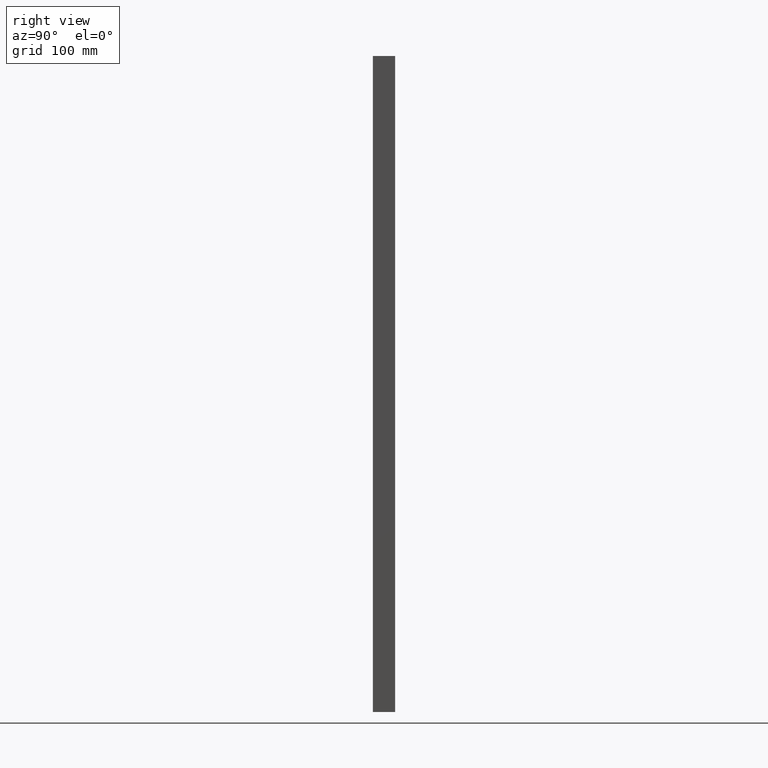
[diagram: clean part render]
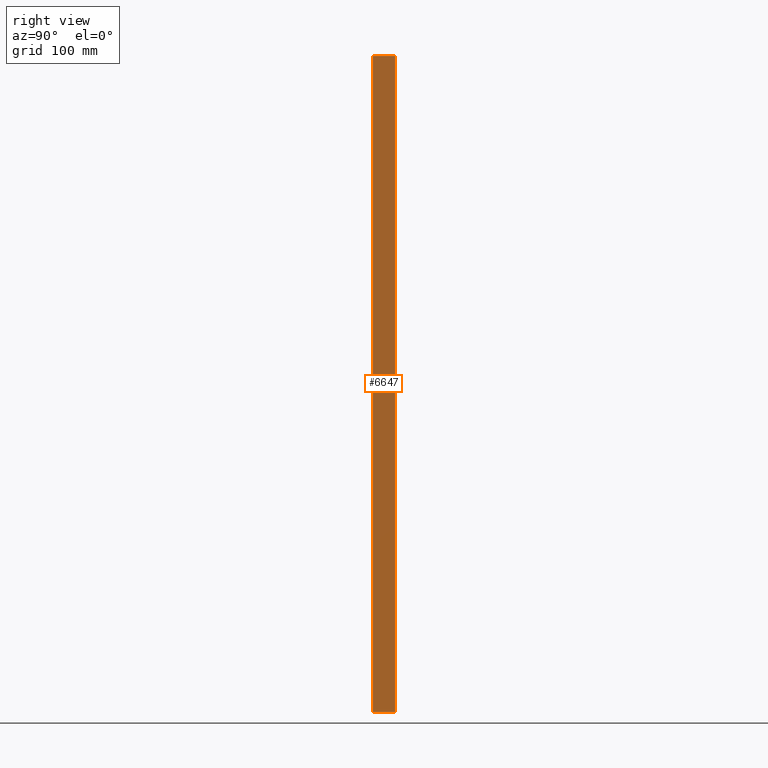
[diagram: same view with one face highlighted and labeled with its STEP entity id]
A machine part, right view. The second image highlights one B-rep face of the part: STEP entity #6647.
In plain terms, the highlighted planar face has unit normal (1, -0, -0).
Its self-contained STEP definition (entity closure, byte-faithful):
#84 = CARTESIAN_POINT ( 'NONE',  ( 289.9999999999999400, 10.00000000000000000, -590.0000000000000000 ) ) ;
#414 = ORIENTED_EDGE ( 'NONE', *, *, #4698, .T. ) ;
#1936 = EDGE_CURVE ( 'NONE', #20058, #10804, #24556, .T. ) ;
#2356 = EDGE_CURVE ( 'NONE', #12671, #4166, #21995, .T. ) ;
#3423 = AXIS2_PLACEMENT_3D ( 'NONE', #14333, #16933, #25914 ) ;
#4166 = VERTEX_POINT ( 'NONE', #18401 ) ;
#4698 = EDGE_CURVE ( 'NONE', #4166, #10804, #25075, .T. ) ;
#5013 = DIRECTION ( 'NONE',  ( 3.061616997868383100E-016, 1.000000000000000000, -3.061616997868383100E-016 ) ) ;
#6620 = VECTOR ( 'NONE', #17186, 1000.000000000000000 ) ;
#6647 = ADVANCED_FACE ( 'NONE', ( #15287 ), #16834, .T. ) ;
#8637 = CARTESIAN_POINT ( 'NONE',  ( 289.9999999999999400, 10.00000000000000000, -590.0000000000000000 ) ) ;
#9049 = DIRECTION ( 'NONE',  ( 9.408669700213193100E-017, 0.0000000000000000000, 1.000000000000000000 ) ) ;
#9282 = VECTOR ( 'NONE', #5013, 1000.000000000000000 ) ;
#10804 = VERTEX_POINT ( 'NONE', #11831 ) ;
#11108 = CARTESIAN_POINT ( 'NONE',  ( 290.0000000000000600, -10.00000000000000000, -590.0000000000000000 ) ) ;
#11831 = CARTESIAN_POINT ( 'NONE',  ( 290.0000000000000600, -10.00000000000000000, 5.551115123125782700E-014 ) ) ;
#12422 = ORIENTED_EDGE ( 'NONE', *, *, #22461, .T. ) ;
#12671 = VERTEX_POINT ( 'NONE', #8637 ) ;
#13095 = VECTOR ( 'NONE', #9049, 1000.000000000000000 ) ;
#13106 = CARTESIAN_POINT ( 'NONE',  ( 290.0000000000000600, 9.999999999999746000, 1.110223024625156500E-013 ) ) ;
#14333 = CARTESIAN_POINT ( 'NONE',  ( 290.0000000000000000, 9.999999999999925400, -590.0000000000000000 ) ) ;
#15287 = FACE_OUTER_BOUND ( 'NONE', #29345, .T. ) ;
#16834 = PLANE ( 'NONE',  #3423 ) ;
#16933 = DIRECTION ( 'NONE',  ( 1.000000000000000000, -3.061616997868383600E-016, -9.408669700213193100E-017 ) ) ;
#17186 = DIRECTION ( 'NONE',  ( -3.061616997868384100E-016, -1.000000000000000000, -3.061616997868383600E-016 ) ) ;
#17750 = DIRECTION ( 'NONE',  ( 9.408669700213193100E-017, 0.0000000000000000000, 1.000000000000000000 ) ) ;
#17793 = ORIENTED_EDGE ( 'NONE', *, *, #2356, .T. ) ;
#18401 = CARTESIAN_POINT ( 'NONE',  ( 290.0000000000000600, 10.00000000000000000, 0.0000000000000000000 ) ) ;
#19217 = LINE ( 'NONE', #23145, #9282 ) ;
#20058 = VERTEX_POINT ( 'NONE', #22990 ) ;
#21995 = LINE ( 'NONE', #84, #13095 ) ;
#22461 = EDGE_CURVE ( 'NONE', #20058, #12671, #19217, .T. ) ;
#22990 = CARTESIAN_POINT ( 'NONE',  ( 290.0000000000000600, -10.00000000000000000, -590.0000000000000000 ) ) ;
#23145 = CARTESIAN_POINT ( 'NONE',  ( 290.0000000000000000, 9.999999999999925400, -590.0000000000000000 ) ) ;
#24556 = LINE ( 'NONE', #11108, #27065 ) ;
#24634 = ORIENTED_EDGE ( 'NONE', *, *, #1936, .F. ) ;
#25075 = LINE ( 'NONE', #13106, #6620 ) ;
#25914 = DIRECTION ( 'NONE',  ( 3.061616997868383600E-016, 1.000000000000000000, 0.0000000000000000000 ) ) ;
#27065 = VECTOR ( 'NONE', #17750, 1000.000000000000000 ) ;
#29345 = EDGE_LOOP ( 'NONE', ( #17793, #414, #24634, #12422 ) ) ;